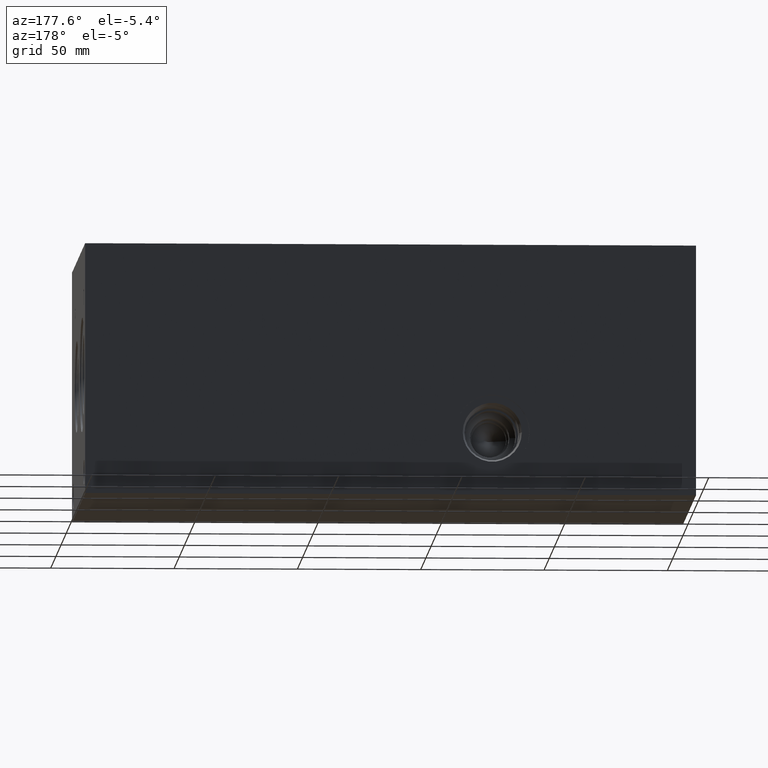
[diagram: clean part render]
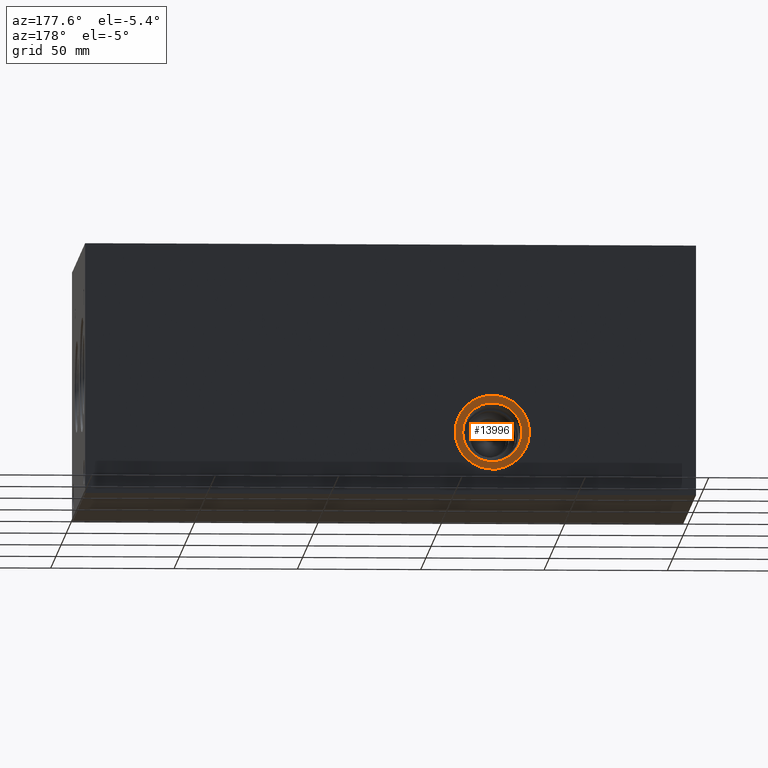
[diagram: same view with one face highlighted and labeled with its STEP entity id]
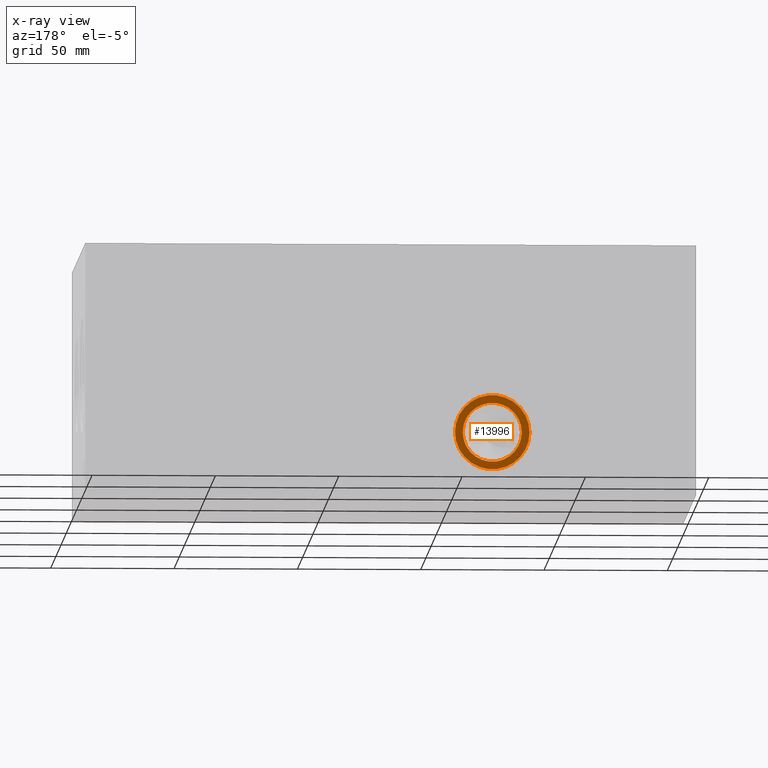
[diagram: x-ray of the same camera — body ghosted, the highlighted face saturated]
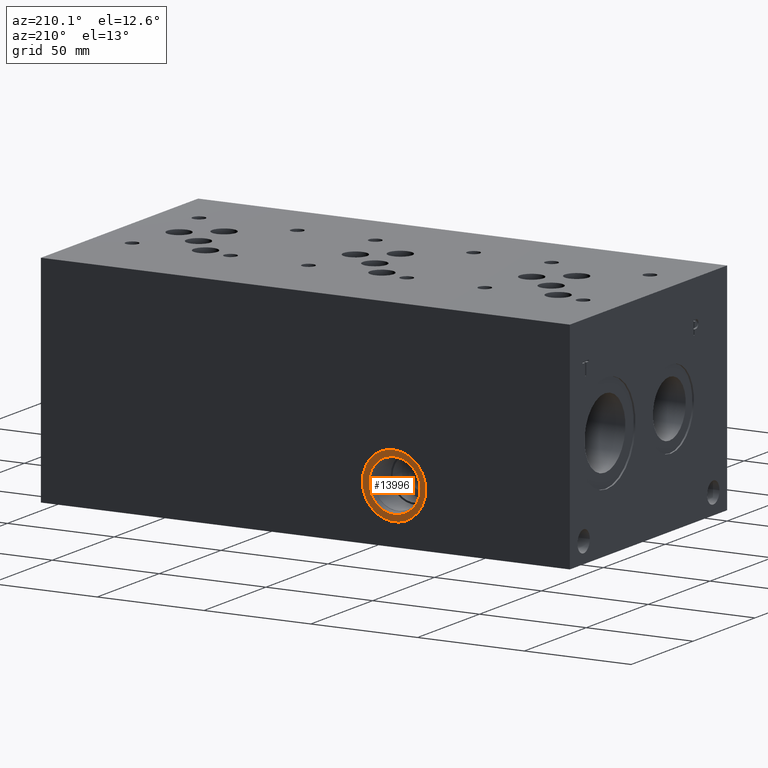
[diagram: same view with one face highlighted and labeled with its STEP entity id]
A machine part, auxiliary view. The second image highlights one B-rep face of the part: STEP entity #13996.
The next image is the same camera in x-ray: the body ghosted, the highlighted face saturated — about 0% of this face is hidden behind the body in this view.
A second angle (auxiliary view) of the same face is appended — the face is thin or edge-on in the first view.
In plain terms, the highlighted planar face has unit normal (0, -1, 0).
Its self-contained STEP definition (entity closure, byte-faithful):
#374=CIRCLE('',#14581,15.08);
#375=CIRCLE('',#14582,15.08);
#376=CIRCLE('',#14584,12.);
#377=CIRCLE('',#14585,12.);
#1123=FACE_BOUND('',#2522,.T.);
#1728=FACE_OUTER_BOUND('',#2521,.T.);
#2521=EDGE_LOOP('',(#11569,#11570));
#2522=EDGE_LOOP('',(#11571,#11572));
#6290=VERTEX_POINT('',#23594);
#6291=VERTEX_POINT('',#23596);
#6292=VERTEX_POINT('',#23600);
#6293=VERTEX_POINT('',#23601);
#8150=EDGE_CURVE('',#6290,#6291,#374,.T.);
#8151=EDGE_CURVE('',#6291,#6290,#375,.T.);
#8152=EDGE_CURVE('',#6292,#6293,#376,.T.);
#8153=EDGE_CURVE('',#6293,#6292,#377,.T.);
#11569=ORIENTED_EDGE('',*,*,#8151,.F.);
#11570=ORIENTED_EDGE('',*,*,#8150,.F.);
#11571=ORIENTED_EDGE('',*,*,#8152,.T.);
#11572=ORIENTED_EDGE('',*,*,#8153,.T.);
#12888=PLANE('',#14583);
#13996=ADVANCED_FACE('',(#1728,#1123),#12888,.F.);
#14581=AXIS2_PLACEMENT_3D('',#23597,#16956,#16957);
#14582=AXIS2_PLACEMENT_3D('',#23598,#16958,#16959);
#14583=AXIS2_PLACEMENT_3D('',#23599,#16960,#16961);
#14584=AXIS2_PLACEMENT_3D('',#23602,#16962,#16963);
#14585=AXIS2_PLACEMENT_3D('',#23603,#16964,#16965);
#16956=DIRECTION('center_axis',(0.,-1.,0.));
#16957=DIRECTION('ref_axis',(1.,0.,0.));
#16958=DIRECTION('center_axis',(0.,-1.,0.));
#16959=DIRECTION('ref_axis',(1.,0.,0.));
#16960=DIRECTION('center_axis',(0.,-1.,0.));
#16961=DIRECTION('ref_axis',(0.,0.,-1.));
#16962=DIRECTION('center_axis',(0.,-1.,0.));
#16963=DIRECTION('ref_axis',(1.,0.,0.));
#16964=DIRECTION('center_axis',(0.,-1.,0.));
#16965=DIRECTION('ref_axis',(1.,0.,0.));
#23594=CARTESIAN_POINT('',(67.47,126.21,25.4));
#23596=CARTESIAN_POINT('',(97.63,126.21,25.4));
#23597=CARTESIAN_POINT('Origin',(82.55,126.21,25.4));
#23598=CARTESIAN_POINT('Origin',(82.55,126.21,25.4));
#23599=CARTESIAN_POINT('Origin',(94.55,126.21,25.4));
#23600=CARTESIAN_POINT('',(94.55,126.21,25.4));
#23601=CARTESIAN_POINT('',(70.55,126.21,25.4));
#23602=CARTESIAN_POINT('Origin',(82.55,126.21,25.4));
#23603=CARTESIAN_POINT('Origin',(82.55,126.21,25.4));